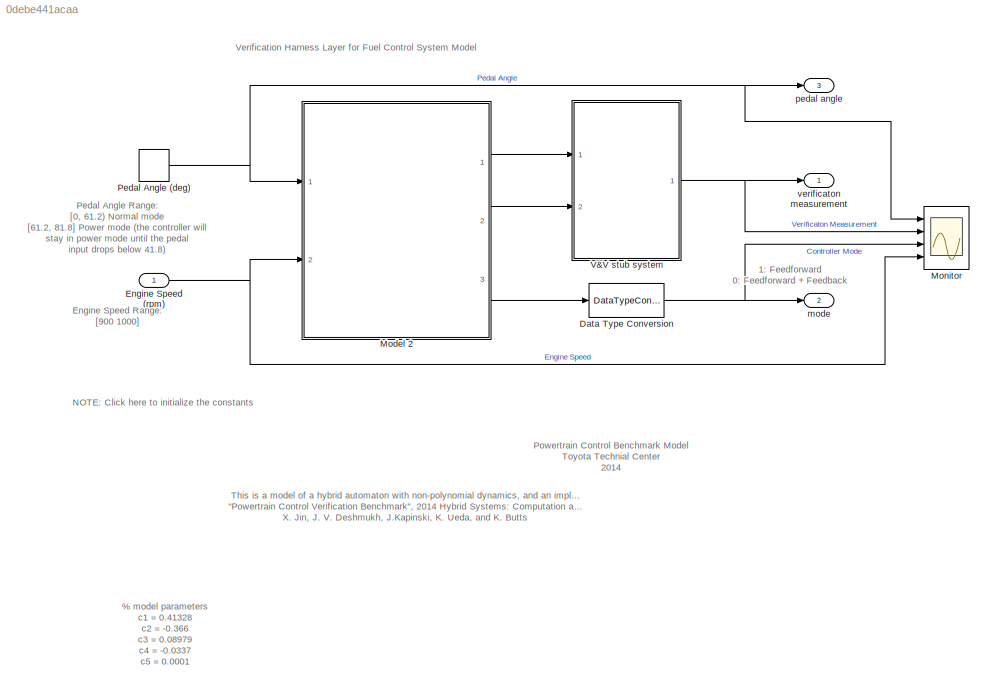
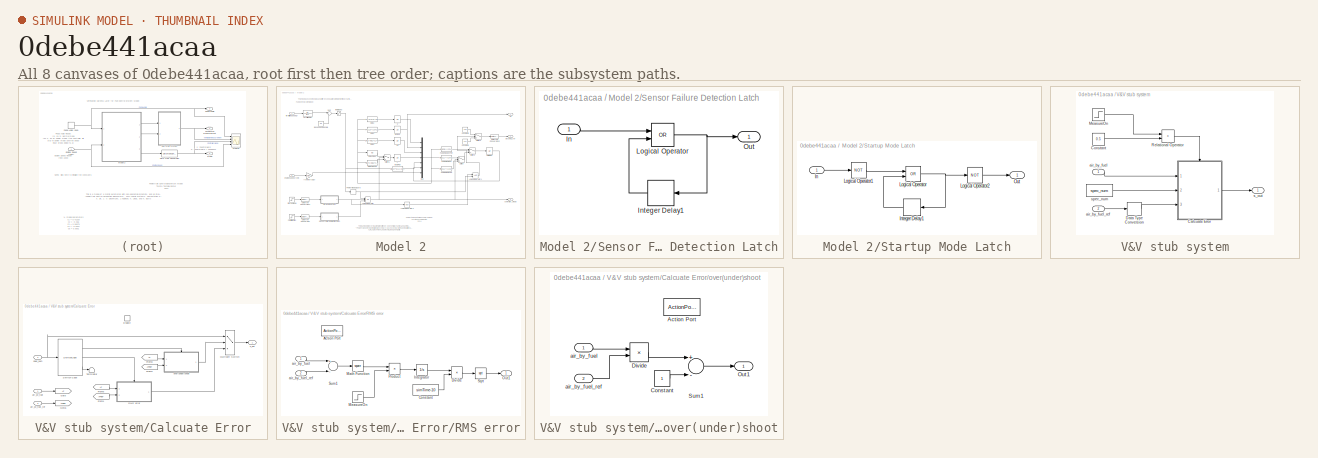
[diagram: thumbnail index - all 8 canvases of the model, root first then tree order]
MODEL slx_0debe441acaa
KIND model
BLOCK [DataTypeConversion] Data Type Conversion
  RndMeth = Floor
  SaturateOnIntegerOverflow = off
BLOCK [Inport] Engine Speed (rpm)
  IconDisplay = Port number
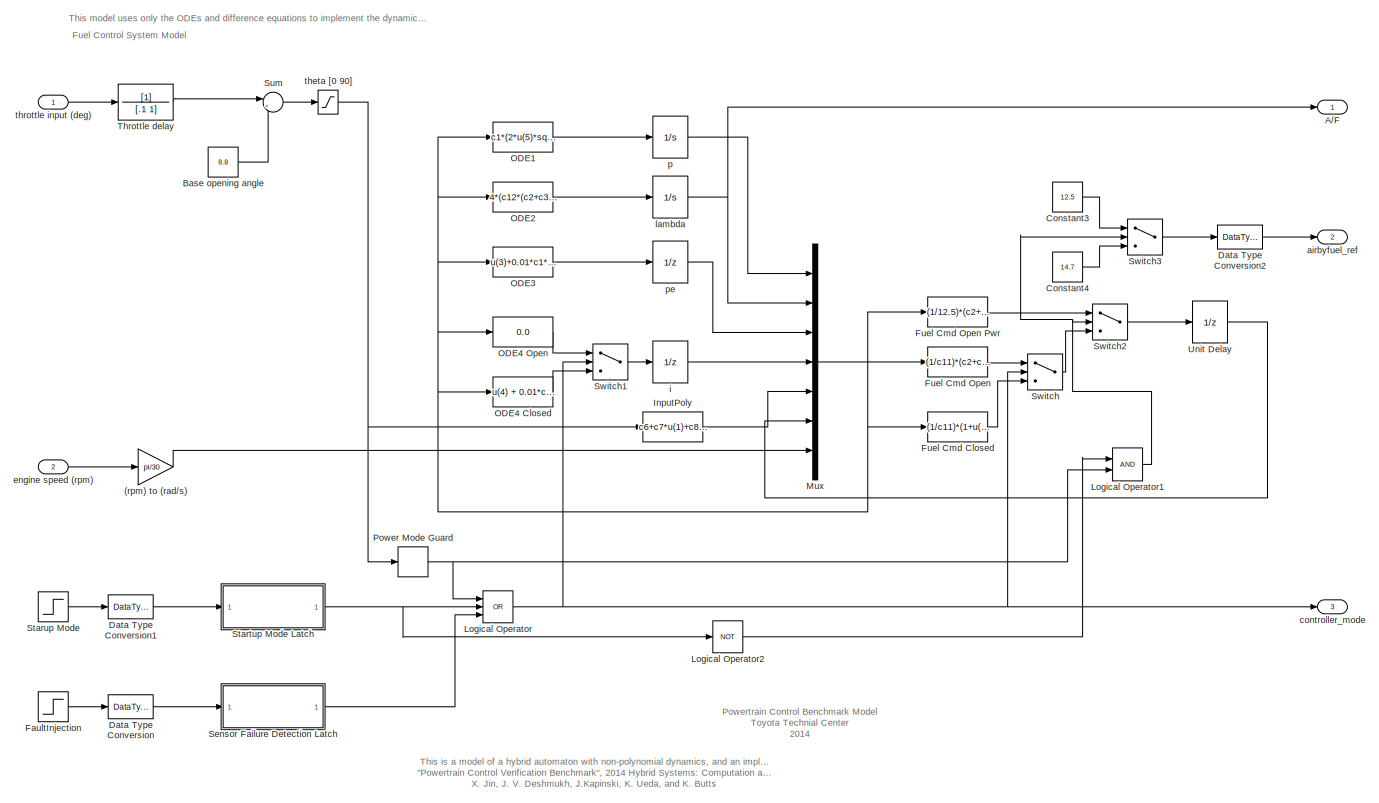
[diagram: Model 2 - part 1/1, most of the canvas]
BLOCK [SubSystem] Model 2
  FunctionWithSeparateData = off
  MaskHideContents = off
  MinAlgLoopOccurrences = off
  Opaque = off
  Ports = [2, 3]
  Priority = 1
  PropExecContextOutsideSubsystem = off
  RTWSystemCode = Auto
  RequestExecContextInheritance = off
  TreatAsAtomicUnit = on
BLOCK [Gain] Model 2/(rpm) to (rad//s)
  Gain = pi/30
  OutDataTypeStr = Inherit: Inherit via internal rule
  ParamDataTypeStr = Inherit: Inherit via internal rule
  SaturateOnIntegerOverflow = off
BLOCK [Outport] Model 2/A//F
  IconDisplay = Port number
BLOCK [Constant] Model 2/Base opening angle
  Value = 8.8
BLOCK [Constant] Model 2/Constant3
  Value = 12.5
BLOCK [Constant] Model 2/Constant4
  Value = 14.7
BLOCK [DataTypeConversion] Model 2/Data Type Conversion
  OutDataTypeStr = boolean
  RndMeth = Floor
  SaturateOnIntegerOverflow = off
BLOCK [DataTypeConversion] Model 2/Data Type Conversion1
  OutDataTypeStr = boolean
  RndMeth = Floor
  SaturateOnIntegerOverflow = off
BLOCK [DataTypeConversion] Model 2/Data Type Conversion2
  OutDataTypeStr = double
  RndMeth = Floor
  SaturateOnIntegerOverflow = off
BLOCK [Step] Model 2/FaultInjection
  AttributesFormatString = 1: Failure\n0: Normal
  SampleTime = 0
  Time = fault_time
BLOCK [Fcn] Model 2/Fuel Cmd Closed
  Expr = (1/c11)*(1+u(4)+c13*(c24*u(2)-c11))*(c2+c3*u(7)*u(3)+c4*u(7)*u(3)^2+c5*u(3)*u(7)^2)
BLOCK [Fcn] Model 2/Fuel Cmd Open
  Expr = (1/c11)*(c2+c3*u(7)*u(3)+c4*u(7)*u(3)^2+c5*u(3)*u(7)^2)
BLOCK [Fcn] Model 2/Fuel Cmd Open Pwr
  Expr = (1/12.5)*(c2+c3*u(7)*u(3)+c4*u(7)*u(3)^2+c5*u(3)*u(7)^2)
BLOCK [Fcn] Model 2/InputPoly
  Expr = c6+c7*u(1)+c8*u(1)^2+c9*u(1)^3
BLOCK [Logic] Model 2/Logical Operator
  AllPortsSameDT = off
  Inputs = 3
  Operator = OR
  OutDataTypeStr = boolean
  Ports = [3, 1]
BLOCK [Logic] Model 2/Logical Operator1
  AllPortsSameDT = off
  OutDataTypeStr = boolean
  Ports = [2, 1]
BLOCK [Logic] Model 2/Logical Operator2
  AllPortsSameDT = off
  Inputs = 3
  Operator = NOT
  OutDataTypeStr = boolean
  Ports = [1, 1]
BLOCK [Mux] Model 2/Mux
  DisplayOption = bar
  Inputs = 7
  Ports = [7, 1]
BLOCK [Fcn] Model 2/ODE1
  Expr = c1*(2*u(5)*sqrt((u(1)/c10)-(u(1)/c10)^2) - c12*(c2+c3*u(7)*u(1)+c4*u(7)*u(1)^2+c5*u(1)*u(7)^2))
BLOCK [Fcn] Model 2/ODE2
  Expr = 4*(c12*(c2+c3*u(7)*u(1)+c4*u(7)*u(1)^2+c5*u(1)*u(7)^2)/(c25*u(6))-u(2))
BLOCK [Fcn] Model 2/ODE3
  Expr = u(3)+0.01*c1*(2*c23*u(5)*sqrt((u(1)/c10)-(u(1)/c10)^2) - (c2+c3*u(7)*u(3)+c4*u(7)*u(3)^2+c5*u(3)*u(7)^2))
BLOCK [Fcn] Model 2/ODE4 Closed
  Expr = u(4) + 0.01*c14*(c24*u(2)-c11)
BLOCK [Fcn] Model 2/ODE4 Open
  Expr = 0.0
BLOCK [Relay] Model 2/Power Mode Guard
  OffSwitchValue = 50
  OnSwitchValue = 70
  SampleTime = 0.01
BLOCK [SubSystem] Model 2/Sensor Failure Detection Latch
  FunctionWithSeparateData = off
  MaskHideContents = off
  MinAlgLoopOccurrences = off
  Opaque = off
  Ports = [1, 1]
  PropExecContextOutsideSubsystem = off
  RTWSystemCode = Auto
  RequestExecContextInheritance = off
  TreatAsAtomicUnit = on
BLOCK [Inport] Model 2/Sensor Failure Detection Latch/In
  IconDisplay = Port number
BLOCK [Delay] Model 2/Sensor Failure Detection Latch/Integer Delay1
  DelayLength = 1
  InputPortMap = u0
  Ports = [1, 1]
  SampleTime = 0.01
  UserDataPersistent = on
BLOCK [Logic] Model 2/Sensor Failure Detection Latch/Logical Operator
  AllPortsSameDT = off
  Operator = OR
  Ports = [2, 1]
BLOCK [Outport] Model 2/Sensor Failure Detection Latch/Out
  IconDisplay = Port number
BLOCK [SubSystem] Model 2/Startup Mode Latch
  FunctionWithSeparateData = off
  MaskHideContents = off
  MinAlgLoopOccurrences = off
  Opaque = off
  Ports = [1, 1]
  PropExecContextOutsideSubsystem = off
  RTWSystemCode = Auto
  RequestExecContextInheritance = off
  TreatAsAtomicUnit = on
BLOCK [Inport] Model 2/Startup Mode Latch/In
  IconDisplay = Port number
BLOCK [Delay] Model 2/Startup Mode Latch/Integer Delay1
  DelayLength = 1
  InputPortMap = u0
  Ports = [1, 1]
  SampleTime = 0.01
  UserDataPersistent = on
BLOCK [Logic] Model 2/Startup Mode Latch/Logical Operator
  AllPortsSameDT = off
  Operator = OR
  Ports = [2, 1]
BLOCK [Logic] Model 2/Startup Mode Latch/Logical Operator1
  AllPortsSameDT = off
  Operator = NOT
  Ports = [1, 1]
BLOCK [Logic] Model 2/Startup Mode Latch/Logical Operator2
  AllPortsSameDT = off
  Operator = NOT
  Ports = [1, 1]
BLOCK [Outport] Model 2/Startup Mode Latch/Out
  IconDisplay = Port number
BLOCK [Step] Model 2/Starup Mode
  After = 0
  Before = 1
  SampleTime = 0
  Time = 10
BLOCK [Sum] Model 2/Sum
  IconShape = round
  InputSameDT = off
  Inputs = |++
  OutDataTypeStr = Inherit: Inherit via internal rule
  Ports = [2, 1]
  SaturateOnIntegerOverflow = off
BLOCK [Switch] Model 2/Switch
  Criteria = u2 ~= 0
  InputSameDT = off
  SaturateOnIntegerOverflow = off
BLOCK [Switch] Model 2/Switch1
  Criteria = u2 ~= 0
  InputSameDT = off
  SaturateOnIntegerOverflow = off
BLOCK [Switch] Model 2/Switch2
  Criteria = u2 ~= 0
  InputSameDT = off
  SaturateOnIntegerOverflow = off
BLOCK [Switch] Model 2/Switch3
  Criteria = u2 ~= 0
  InputSameDT = off
  SaturateOnIntegerOverflow = off
BLOCK [TransferFcn] Model 2/Throttle  delay
  Denominator = [.1 1]
BLOCK [UnitDelay] Model 2/Unit Delay
  InitialCondition = 0.6537
  InputProcessing = Elements as channels (sample based)
  SampleTime = 0.01
BLOCK [Outport] Model 2/airbyfuel_ref
  IconDisplay = Port number
  Port = 2
BLOCK [Outport] Model 2/controller_mode
  IconDisplay = Port number
  Port = 3
BLOCK [Inport] Model 2/engine speed (rpm)
  AttributesFormatString = %<Description>
  Description = [900,1100]
  IconDisplay = Port number
  Port = 2
BLOCK [UnitDelay] Model 2/i
  SampleTime = 0.01
  UserDataPersistent = on
BLOCK [Integrator] Model 2/lambda
  InitialCondition = 14.7
  Ports = [1, 1]
BLOCK [Integrator] Model 2/p
  InitialCondition = 0.6215
  Ports = [1, 1]
BLOCK [UnitDelay] Model 2/pe
  InitialCondition = 0.5455
  SampleTime = 0.01
  UserDataPersistent = on
BLOCK [Saturate] Model 2/theta [0 90]
  InputPortMap = u0
  LowerLimit = 0
  Ports = [1, 1]
  UpperLimit = 90
BLOCK [Inport] Model 2/throttle input (deg)
  AttributesFormatString = %<Description>
  Description = [0, 81.2]
  IconDisplay = Port number
BLOCK [Scope] Monitor 
  DataFormat = StructureWithTime
  Floating = off
  LimitDataPoints = off
  NumInputPorts = 4
  Ports = [4]
  SampleTime = 0
  ShowLegends = off
  TimeRange = 50
  YMax = 55~0.01~1~1050
  YMin = 0~-0.01~0~950
  ZoomMode = xonly
BLOCK [DiscretePulseGenerator] Pedal Angle (deg)
  Amplitude = 31.6434
  Period = 25.16
  PhaseDelay = 3
  Ports = [0, 1]
  PulseType = Time based
  PulseWidth = 50
BLOCK [SubSystem] V&V stub system
  FunctionWithSeparateData = off
  MaskHideContents = off
  MinAlgLoopOccurrences = off
  Opaque = off
  Ports = [2, 1]
  PropExecContextOutsideSubsystem = off
  RTWSystemCode = Auto
  RequestExecContextInheritance = off
  TreatAsAtomicUnit = on
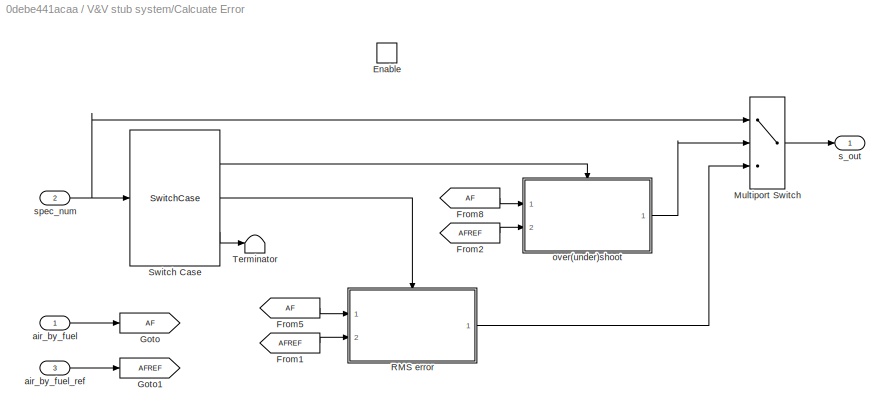
BLOCK [SubSystem] V&V stub system/Calcuate Error
  FunctionWithSeparateData = off
  MaskHideContents = off
  MinAlgLoopOccurrences = off
  Opaque = off
  Ports = [3, 1, 1]
  Priority = 20
  PropExecContextOutsideSubsystem = off
  RTWSystemCode = Auto
  RequestExecContextInheritance = off
  TreatAsAtomicUnit = on
BLOCK [EnablePort] V&V stub system/Calcuate Error/Enable
  Ports = []
BLOCK [From] V&V stub system/Calcuate Error/From1
  GotoTag = AFREF
BLOCK [From] V&V stub system/Calcuate Error/From2
  GotoTag = AFREF
BLOCK [From] V&V stub system/Calcuate Error/From5
  GotoTag = AF
BLOCK [From] V&V stub system/Calcuate Error/From8
  GotoTag = AF
BLOCK [Goto] V&V stub system/Calcuate Error/Goto
  GotoTag = AF
BLOCK [Goto] V&V stub system/Calcuate Error/Goto1
  GotoTag = AFREF
BLOCK [MultiPortSwitch] V&V stub system/Calcuate Error/Multiport Switch
  InputSameDT = off
  Inputs = 2
  Ports = [3, 1]
  SaturateOnIntegerOverflow = off
BLOCK [SubSystem] V&V stub system/Calcuate Error/RMS error
  FunctionWithSeparateData = off
  MaskHideContents = off
  MinAlgLoopOccurrences = off
  Opaque = off
  Ports = [2, 1, 0, 0, 0, 0, 0, 1]
  PropExecContextOutsideSubsystem = off
  RTWSystemCode = Auto
  RequestExecContextInheritance = off
  TreatAsAtomicUnit = on
BLOCK [ActionPort] V&V stub system/Calcuate Error/RMS error/Action Port
  ActionType = case
BLOCK [Constant] V&V stub system/Calcuate Error/RMS error/Constant
  Value = simTime-10
BLOCK [Product] V&V stub system/Calcuate Error/RMS error/Divide
  InputSameDT = off
  Inputs = */
  OutDataTypeStr = Inherit: Inherit via internal rule
  Ports = [2, 1]
  RndMeth = Floor
  SaturateOnIntegerOverflow = off
BLOCK [Integrator] V&V stub system/Calcuate Error/RMS error/Integrator
  Ports = [1, 1]
BLOCK [Math] V&V stub system/Calcuate Error/RMS error/Math Function
  Operator = square
  Ports = [1, 1]
BLOCK [Step] V&V stub system/Calcuate Error/RMS error/MeasureOn
  SampleTime = 0
  Time = 10
BLOCK [Outport] V&V stub system/Calcuate Error/RMS error/Out1
  IconDisplay = Port number
BLOCK [Product] V&V stub system/Calcuate Error/RMS error/Product
  InputSameDT = off
  OutDataTypeStr = Inherit: Inherit via internal rule
  Ports = [2, 1]
  RndMeth = Floor
  SaturateOnIntegerOverflow = off
BLOCK [Sqrt] V&V stub system/Calcuate Error/RMS error/Sqrt
BLOCK [Sum] V&V stub system/Calcuate Error/RMS error/Sum1
  Inputs = +-
  OutDataTypeStr = Inherit: Inherit via back propagation
  Ports = [2, 1]
  RndMeth = Simplest
  SaturateOnIntegerOverflow = off
BLOCK [Inport] V&V stub system/Calcuate Error/RMS error/air_by_fuel 
  IconDisplay = Port number
BLOCK [Inport] V&V stub system/Calcuate Error/RMS error/air_by_fuel_ref
  IconDisplay = Port number
  Port = 2
BLOCK [SwitchCase] V&V stub system/Calcuate Error/Switch Case
  CaseConditions = {1,2}
  Ports = [1, 3]
BLOCK [Terminator] V&V stub system/Calcuate Error/Terminator
BLOCK [Inport] V&V stub system/Calcuate Error/air_by_fuel 
  IconDisplay = Port number
BLOCK [Inport] V&V stub system/Calcuate Error/air_by_fuel_ref
  IconDisplay = Port number
  Port = 3
BLOCK [SubSystem] V&V stub system/Calcuate Error/over(under)shoot
  FunctionWithSeparateData = off
  MaskHideContents = off
  MinAlgLoopOccurrences = off
  Opaque = off
  Ports = [2, 1, 0, 0, 0, 0, 0, 1]
  PropExecContextOutsideSubsystem = off
  RTWSystemCode = Auto
  RequestExecContextInheritance = off
  TreatAsAtomicUnit = on
BLOCK [ActionPort] V&V stub system/Calcuate Error/over(under)shoot/Action Port
  ActionType = case
BLOCK [Constant] V&V stub system/Calcuate Error/over(under)shoot/Constant
BLOCK [Product] V&V stub system/Calcuate Error/over(under)shoot/Divide
  InputSameDT = off
  Inputs = */
  OutDataTypeStr = Inherit: Inherit via internal rule
  Ports = [2, 1]
  RndMeth = Floor
  SaturateOnIntegerOverflow = off
BLOCK [Outport] V&V stub system/Calcuate Error/over(under)shoot/Out1
  IconDisplay = Port number
BLOCK [Sum] V&V stub system/Calcuate Error/over(under)shoot/Sum1
  Inputs = +-
  OutDataTypeStr = Inherit: Inherit via back propagation
  Ports = [2, 1]
  RndMeth = Simplest
  SaturateOnIntegerOverflow = off
BLOCK [Inport] V&V stub system/Calcuate Error/over(under)shoot/air_by_fuel 
  IconDisplay = Port number
BLOCK [Inport] V&V stub system/Calcuate Error/over(under)shoot/air_by_fuel_ref
  IconDisplay = Port number
  Port = 2
BLOCK [Outport] V&V stub system/Calcuate Error/s_out 
  IconDisplay = Port number
BLOCK [Inport] V&V stub system/Calcuate Error/spec_num
  IconDisplay = Port number
  OutDataTypeStr = uint8
  Port = 2
BLOCK [Constant] V&V stub system/Constant
  Value = 0.5
BLOCK [DataTypeConversion] V&V stub system/Data Type Conversion
  OutDataTypeStr = double
  RndMeth = Floor
  SaturateOnIntegerOverflow = off
BLOCK [Step] V&V stub system/MeasureOn
  SampleTime = 0
  Time = measureTime
BLOCK [RelationalOperator] V&V stub system/Relational Operator
  InputSameDT = off
  Operator = >
  OutDataTypeStr = boolean
  Ports = [2, 1]
BLOCK [Inport] V&V stub system/air_by_fuel 
  IconDisplay = Port number
  OutDataTypeStr = double
BLOCK [Inport] V&V stub system/air_by_fuel_ref
  IconDisplay = Port number
  Port = 2
BLOCK [Outport] V&V stub system/s_out 
  IconDisplay = Port number
BLOCK [Constant] V&V stub system/spec_num
  OutDataTypeStr = uint8
  Value = spec_num
BLOCK [Outport] mode
  IconDisplay = Port number
  Port = 2
BLOCK [Outport] pedal angle
  IconDisplay = Port number
  Port = 3
BLOCK [Outport] verificaton measurement
  IconDisplay = Port number
ANNOTATION (root): % model parameters c1 = 0.41328 c2 = -0.366 c3 = 0.08979 c4 = -0.0337 c5 = 0.0001 c6 = 2.821 c7 = -0.05231 c8 = 0.10299 c9 = -0.00063 c10 = 1.0 c11 = 14.7 c12 = 0.9 c13 = 0.04 c14 = 0.14 % sensors and actuator error factor c23 = 1.0 c24 = 1.0 c25 = 1.0 % simulation time simTime = 50 % engine speed en_speed = 1000 % time to start measurement for verification measureTime = 1 % time to introduce sens...<+60ch>
ANNOTATION (root): 1: Feedforward 0: Feedforward + Feedback
ANNOTATION (root): Engine Speed Range: [900 1000]
ANNOTATION (root): NOTE: Click here to initialize the constants
ANNOTATION (root): Pedal Angle Range: [0, 61.2) Normal mode [61.2, 81.8] Power mode (the controller will stay in power mode until the pedal input drops below 41.8)
ANNOTATION (root): Powertrain Control Benchmark Model Toyota Technial Center 2014
ANNOTATION (root): This is a model of a hybrid automaton with non-polynomial dynamics, and an implementation of the 2nd model that appears in "Powertrain Control Verification Benchmark", 2014 Hybrid Systems: Computation and Control, X. Jin, J. V. Deshmukh, J.Kapinski, K. Ueda, and K. Butts
ANNOTATION (root): Verification Harness Layer for Fuel Control System Model
ANNOTATION Model 2: Fuel Control System Model
ANNOTATION Model 2: Powertrain Control Benchmark Model Toyota Technial Center 2014
ANNOTATION Model 2: This is a model of a hybrid automaton with non-polynomial dynamics, and an implementation of the 2nd model that appears in "Powertrain Control Verification Benchmark", 2014 Hybrid Systems: Computation and Control, X. Jin, J. V. Deshmukh, J.Kapinski, K. Ueda, and K. Butts
ANNOTATION Model 2: This model uses only the ODEs and difference equations to implement the dynamics.
NET Data Type Conversion:1 -> Monitor :3, mode:1
NET Engine Speed (rpm):1 -> Model 2:2, Monitor :4
LINE Model 2/(rpm) to (rad//s):1 -> Model 2/Mux:7
LINE Model 2/Base opening angle:1 -> Model 2/Sum:2
LINE Model 2/Constant3:1 -> Model 2/Switch3:1
LINE Model 2/Constant4:1 -> Model 2/Switch3:3
LINE Model 2/Data Type Conversion1:1 -> Model 2/Startup Mode Latch:1
LINE Model 2/Data Type Conversion2:1 -> Model 2/airbyfuel_ref:1
LINE Model 2/Data Type Conversion:1 -> Model 2/Sensor Failure Detection Latch:1
LINE Model 2/FaultInjection:1 -> Model 2/Data Type Conversion:1
LINE Model 2/Fuel Cmd Closed:1 -> Model 2/Switch:3
LINE Model 2/Fuel Cmd Open Pwr:1 -> Model 2/Switch2:1
LINE Model 2/Fuel Cmd Open:1 -> Model 2/Switch:1
LINE Model 2/InputPoly:1 -> Model 2/Mux:5
NET Model 2/Logical Operator1:1 -> Model 2/Switch2:2, Model 2/Switch3:2
LINE Model 2/Logical Operator2:1 -> Model 2/Logical Operator1:1
NET Model 2/Logical Operator:1 -> Model 2/Switch1:2, Model 2/Switch:2, Model 2/controller_mode:1
NET Model 2/Mux:1 -> Model 2/Fuel Cmd Closed:1, Model 2/Fuel Cmd Open Pwr:1, Model 2/Fuel Cmd Open:1, Model 2/ODE1:1, Model 2/ODE2:1, Model 2/ODE3:1, Model 2/ODE4 Closed:1, Model 2/ODE4 Open:1
LINE Model 2/ODE1:1 -> Model 2/p:1
LINE Model 2/ODE2:1 -> Model 2/lambda:1
LINE Model 2/ODE3:1 -> Model 2/pe:1
LINE Model 2/ODE4 Closed:1 -> Model 2/Switch1:3
LINE Model 2/ODE4 Open:1 -> Model 2/Switch1:1
NET Model 2/Power Mode Guard:1 -> Model 2/Logical Operator1:2, Model 2/Logical Operator:1
LINE Model 2/Sensor Failure Detection Latch/In:1 -> Model 2/Sensor Failure Detection Latch/Logical Operator:1
LINE Model 2/Sensor Failure Detection Latch/Integer Delay1:1 -> Model 2/Sensor Failure Detection Latch/Logical Operator:2
NET Model 2/Sensor Failure Detection Latch/Logical Operator:1 -> Model 2/Sensor Failure Detection Latch/Integer Delay1:1, Model 2/Sensor Failure Detection Latch/Out:1
LINE Model 2/Sensor Failure Detection Latch:1 -> Model 2/Logical Operator:3
LINE Model 2/Startup Mode Latch/In:1 -> Model 2/Startup Mode Latch/Logical Operator1:1
LINE Model 2/Startup Mode Latch/Integer Delay1:1 -> Model 2/Startup Mode Latch/Logical Operator:2
LINE Model 2/Startup Mode Latch/Logical Operator1:1 -> Model 2/Startup Mode Latch/Logical Operator:1
LINE Model 2/Startup Mode Latch/Logical Operator2:1 -> Model 2/Startup Mode Latch/Out:1
NET Model 2/Startup Mode Latch/Logical Operator:1 -> Model 2/Startup Mode Latch/Integer Delay1:1, Model 2/Startup Mode Latch/Logical Operator2:1
NET Model 2/Startup Mode Latch:1 -> Model 2/Logical Operator2:1, Model 2/Logical Operator:2
LINE Model 2/Starup Mode:1 -> Model 2/Data Type Conversion1:1
LINE Model 2/Sum:1 -> Model 2/theta [0 90]:1
LINE Model 2/Switch1:1 -> Model 2/i:1
LINE Model 2/Switch2:1 -> Model 2/Unit Delay:1
LINE Model 2/Switch3:1 -> Model 2/Data Type Conversion2:1
LINE Model 2/Switch:1 -> Model 2/Switch2:3
LINE Model 2/Throttle  delay:1 -> Model 2/Sum:1
LINE Model 2/Unit Delay:1 -> Model 2/Mux:6
LINE Model 2/engine speed (rpm):1 -> Model 2/(rpm) to (rad//s):1
LINE Model 2/i:1 -> Model 2/Mux:4
NET Model 2/lambda:1 -> Model 2/A//F:1, Model 2/Mux:2
LINE Model 2/p:1 -> Model 2/Mux:1
LINE Model 2/pe:1 -> Model 2/Mux:3
NET Model 2/theta [0 90]:1 -> Model 2/InputPoly:1, Model 2/Power Mode Guard:1
LINE Model 2/throttle input (deg):1 -> Model 2/Throttle  delay:1
LINE Model 2:1 -> V&V stub system:1
LINE Model 2:2 -> V&V stub system:2
LINE Model 2:3 -> Data Type Conversion:1
NET Pedal Angle (deg):1 -> Model 2:1, Monitor :1, pedal angle:1
LINE V&V stub system/Calcuate Error/From1:1 -> V&V stub system/Calcuate Error/RMS error:2
LINE V&V stub system/Calcuate Error/From2:1 -> V&V stub system/Calcuate Error/over(under)shoot:2
LINE V&V stub system/Calcuate Error/From5:1 -> V&V stub system/Calcuate Error/RMS error:1
LINE V&V stub system/Calcuate Error/From8:1 -> V&V stub system/Calcuate Error/over(under)shoot:1
LINE V&V stub system/Calcuate Error/Multiport Switch:1 -> V&V stub system/Calcuate Error/s_out :1
LINE V&V stub system/Calcuate Error/RMS error/Constant:1 -> V&V stub system/Calcuate Error/RMS error/Divide:2
LINE V&V stub system/Calcuate Error/RMS error/Divide:1 -> V&V stub system/Calcuate Error/RMS error/Sqrt:1
LINE V&V stub system/Calcuate Error/RMS error/Integrator:1 -> V&V stub system/Calcuate Error/RMS error/Divide:1
LINE V&V stub system/Calcuate Error/RMS error/Math Function:1 -> V&V stub system/Calcuate Error/RMS error/Product:1
LINE V&V stub system/Calcuate Error/RMS error/MeasureOn:1 -> V&V stub system/Calcuate Error/RMS error/Product:2
LINE V&V stub system/Calcuate Error/RMS error/Product:1 -> V&V stub system/Calcuate Error/RMS error/Integrator:1
LINE V&V stub system/Calcuate Error/RMS error/Sqrt:1 -> V&V stub system/Calcuate Error/RMS error/Out1:1
LINE V&V stub system/Calcuate Error/RMS error/Sum1:1 -> V&V stub system/Calcuate Error/RMS error/Math Function:1
LINE V&V stub system/Calcuate Error/RMS error/air_by_fuel :1 -> V&V stub system/Calcuate Error/RMS error/Sum1:1
LINE V&V stub system/Calcuate Error/RMS error/air_by_fuel_ref:1 -> V&V stub system/Calcuate Error/RMS error/Sum1:2
LINE V&V stub system/Calcuate Error/RMS error:1 -> V&V stub system/Calcuate Error/Multiport Switch:3
LINE V&V stub system/Calcuate Error/Switch Case:1 -> V&V stub system/Calcuate Error/over(under)shoot:ifaction
LINE V&V stub system/Calcuate Error/Switch Case:2 -> V&V stub system/Calcuate Error/RMS error:ifaction
LINE V&V stub system/Calcuate Error/Switch Case:3 -> V&V stub system/Calcuate Error/Terminator:1
LINE V&V stub system/Calcuate Error/air_by_fuel :1 -> V&V stub system/Calcuate Error/Goto:1
LINE V&V stub system/Calcuate Error/air_by_fuel_ref:1 -> V&V stub system/Calcuate Error/Goto1:1
LINE V&V stub system/Calcuate Error/over(under)shoot/Constant:1 -> V&V stub system/Calcuate Error/over(under)shoot/Sum1:2
LINE V&V stub system/Calcuate Error/over(under)shoot/Divide:1 -> V&V stub system/Calcuate Error/over(under)shoot/Sum1:1
LINE V&V stub system/Calcuate Error/over(under)shoot/Sum1:1 -> V&V stub system/Calcuate Error/over(under)shoot/Out1:1
LINE V&V stub system/Calcuate Error/over(under)shoot/air_by_fuel :1 -> V&V stub system/Calcuate Error/over(under)shoot/Divide:1
LINE V&V stub system/Calcuate Error/over(under)shoot/air_by_fuel_ref:1 -> V&V stub system/Calcuate Error/over(under)shoot/Divide:2
LINE V&V stub system/Calcuate Error/over(under)shoot:1 -> V&V stub system/Calcuate Error/Multiport Switch:2
NET V&V stub system/Calcuate Error/spec_num:1 -> V&V stub system/Calcuate Error/Multiport Switch:1, V&V stub system/Calcuate Error/Switch Case:1
LINE V&V stub system/Calcuate Error:1 -> V&V stub system/s_out :1
LINE V&V stub system/Constant:1 -> V&V stub system/Relational Operator:2
LINE V&V stub system/Data Type Conversion:1 -> V&V stub system/Calcuate Error:3
LINE V&V stub system/MeasureOn:1 -> V&V stub system/Relational Operator:1
LINE V&V stub system/Relational Operator:1 -> V&V stub system/Calcuate Error:enable
LINE V&V stub system/air_by_fuel :1 -> V&V stub system/Calcuate Error:1
LINE V&V stub system/air_by_fuel_ref:1 -> V&V stub system/Data Type Conversion:1
LINE V&V stub system/spec_num:1 -> V&V stub system/Calcuate Error:2
NET V&V stub system:1 -> Monitor :2, verificaton measurement:1
note: NET lines group one-source signal fan-out (src -> all destinations, sorted); 1:1 wires keep LINE
